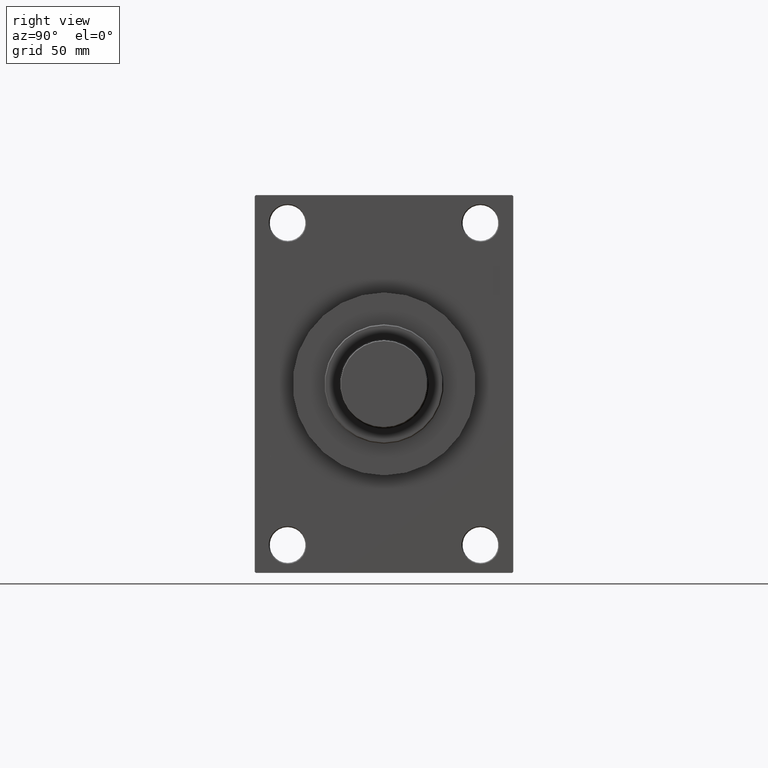
[diagram: clean part render]
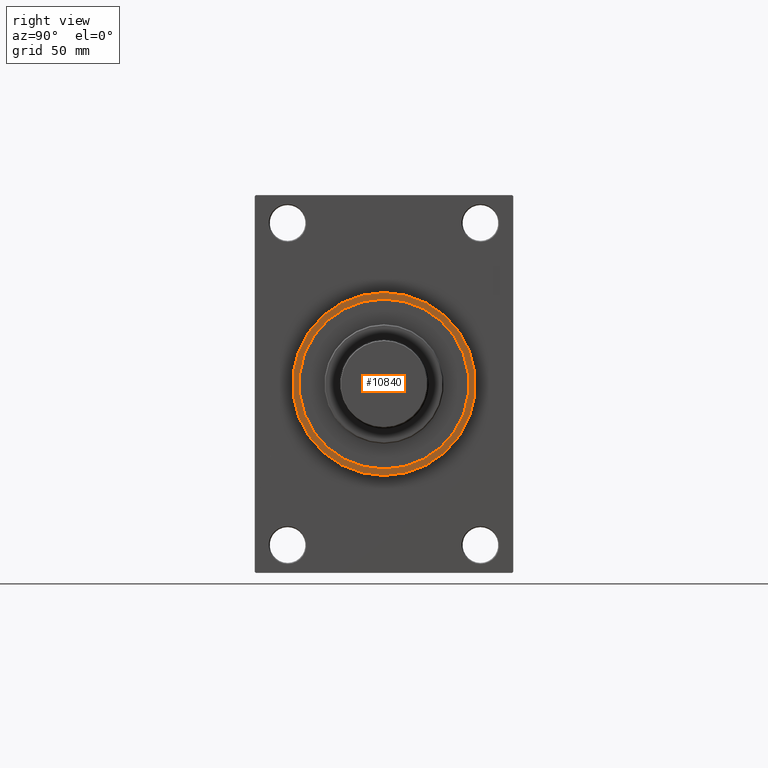
[diagram: same view with one face highlighted and labeled with its STEP entity id]
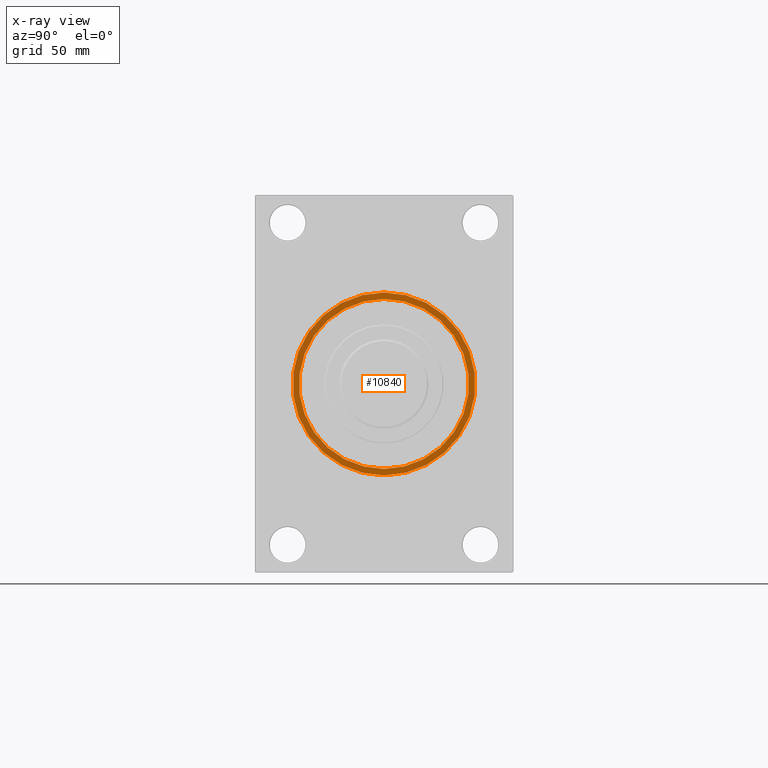
[diagram: x-ray of the same camera — body ghosted, the highlighted face saturated]
A machine part, right view. The second image highlights one B-rep face of the part: STEP entity #10840.
The next image is the same camera in x-ray: the body ghosted, the highlighted face saturated — about 0% of this face is hidden behind the body in this view.
In plain terms, the highlighted planar face has unit normal (1, 0, 0).
Its self-contained STEP definition (entity closure, byte-faithful):
#1465 = VERTEX_POINT ( 'NONE', #17795 ) ;
#2744 = AXIS2_PLACEMENT_3D ( 'NONE', #43130, #27338, #13453 ) ;
#3601 = DIRECTION ( 'NONE',  ( 1.000000000000000000, 0.000000000000000000, 0.000000000000000000 ) ) ;
#3854 = DIRECTION ( 'NONE',  ( 1.000000000000000000, 0.000000000000000000, 0.000000000000000000 ) ) ;
#4385 = VERTEX_POINT ( 'NONE', #25576 ) ;
#5979 = ORIENTED_EDGE ( 'NONE', *, *, #41538, .T. ) ;
#6418 = CARTESIAN_POINT ( 'NONE',  ( 187.9999999999999716, 0.000000000000000000, 0.000000000000000000 ) ) ;
#7198 = AXIS2_PLACEMENT_3D ( 'NONE', #46960, #43544, #36015 ) ;
#7670 = ORIENTED_EDGE ( 'NONE', *, *, #35606, .F. ) ;
#9576 = FACE_OUTER_BOUND ( 'NONE', #35091, .T. ) ;
#10092 = CARTESIAN_POINT ( 'NONE',  ( 187.9999999999999716, 0.000000000000000000, 46.00000000000000000 ) ) ;
#10840 = ADVANCED_FACE ( 'NONE', ( #46775, #9576 ), #12974, .T. ) ;
#11577 = AXIS2_PLACEMENT_3D ( 'NONE', #32804, #3854, #33519 ) ;
#11639 = AXIS2_PLACEMENT_3D ( 'NONE', #6418, #43397, #36573 ) ;
#12974 = PLANE ( 'NONE',  #2744 ) ;
#13453 = DIRECTION ( 'NONE',  ( 0.000000000000000000, 0.000000000000000000, -1.000000000000000000 ) ) ;
#13894 = CIRCLE ( 'NONE', #11577, 42.75000000000000000 ) ;
#16296 = CIRCLE ( 'NONE', #11639, 42.75000000000000000 ) ;
#17795 = CARTESIAN_POINT ( 'NONE',  ( 187.9999999999999716, 0.000000000000000000, -42.75000000000000000 ) ) ;
#20046 = AXIS2_PLACEMENT_3D ( 'NONE', #25975, #3601, #29139 ) ;
#24394 = CARTESIAN_POINT ( 'NONE',  ( 187.9999999999999716, 5.633375276077824704E-15, -46.00000000000000000 ) ) ;
#25576 = CARTESIAN_POINT ( 'NONE',  ( 187.9999999999999716, 5.235365066354935472E-15, 42.75000000000000000 ) ) ;
#25975 = CARTESIAN_POINT ( 'NONE',  ( 187.9999999999999716, 0.000000000000000000, 0.000000000000000000 ) ) ;
#26023 = EDGE_LOOP ( 'NONE', ( #7670, #28635 ) ) ;
#27338 = DIRECTION ( 'NONE',  ( 1.000000000000000000, 0.000000000000000000, 0.000000000000000000 ) ) ;
#28512 = EDGE_CURVE ( 'NONE', #40268, #45422, #44907, .T. ) ;
#28635 = ORIENTED_EDGE ( 'NONE', *, *, #30396, .F. ) ;
#29139 = DIRECTION ( 'NONE',  ( 0.000000000000000000, 0.000000000000000000, -1.000000000000000000 ) ) ;
#30396 = EDGE_CURVE ( 'NONE', #4385, #1465, #13894, .T. ) ;
#32804 = CARTESIAN_POINT ( 'NONE',  ( 187.9999999999999716, 0.000000000000000000, 0.000000000000000000 ) ) ;
#33519 = DIRECTION ( 'NONE',  ( 0.000000000000000000, 0.000000000000000000, -1.000000000000000000 ) ) ;
#35091 = EDGE_LOOP ( 'NONE', ( #5979, #39217 ) ) ;
#35606 = EDGE_CURVE ( 'NONE', #1465, #4385, #16296, .T. ) ;
#36015 = DIRECTION ( 'NONE',  ( 0.000000000000000000, 0.000000000000000000, -1.000000000000000000 ) ) ;
#36573 = DIRECTION ( 'NONE',  ( 0.000000000000000000, 0.000000000000000000, -1.000000000000000000 ) ) ;
#39217 = ORIENTED_EDGE ( 'NONE', *, *, #28512, .T. ) ;
#40268 = VERTEX_POINT ( 'NONE', #24394 ) ;
#40592 = CIRCLE ( 'NONE', #7198, 46.00000000000000000 ) ;
#41538 = EDGE_CURVE ( 'NONE', #45422, #40268, #40592, .T. ) ;
#43130 = CARTESIAN_POINT ( 'NONE',  ( 187.9999999999999716, 0.000000000000000000, 0.000000000000000000 ) ) ;
#43397 = DIRECTION ( 'NONE',  ( 1.000000000000000000, 0.000000000000000000, 0.000000000000000000 ) ) ;
#43544 = DIRECTION ( 'NONE',  ( 1.000000000000000000, 0.000000000000000000, 0.000000000000000000 ) ) ;
#44907 = CIRCLE ( 'NONE', #20046, 46.00000000000000000 ) ;
#45422 = VERTEX_POINT ( 'NONE', #10092 ) ;
#46775 = FACE_BOUND ( 'NONE', #26023, .T. ) ;
#46960 = CARTESIAN_POINT ( 'NONE',  ( 187.9999999999999716, 0.000000000000000000, 0.000000000000000000 ) ) ;